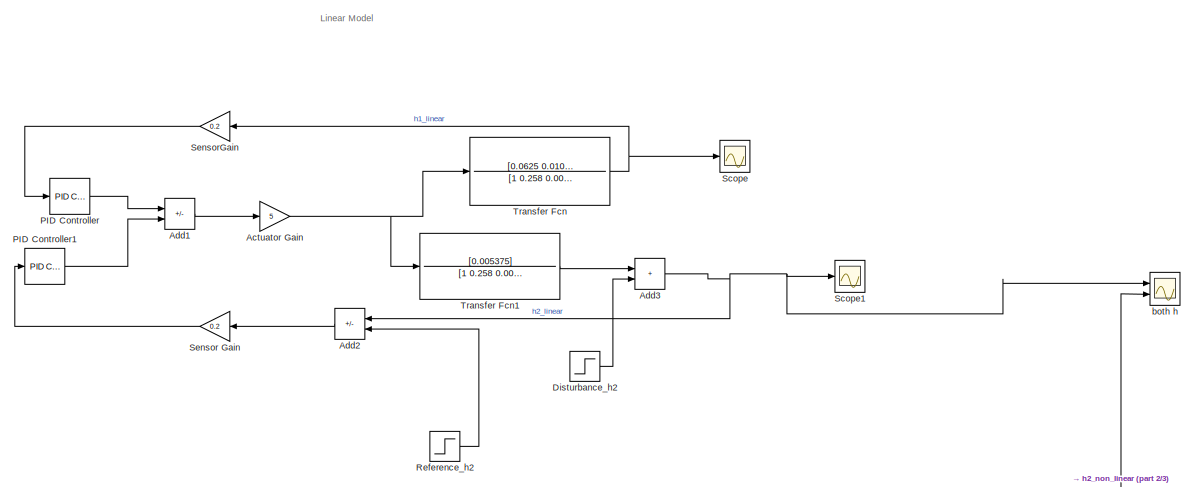
[diagram: root canvas - part 1/3, top left region]
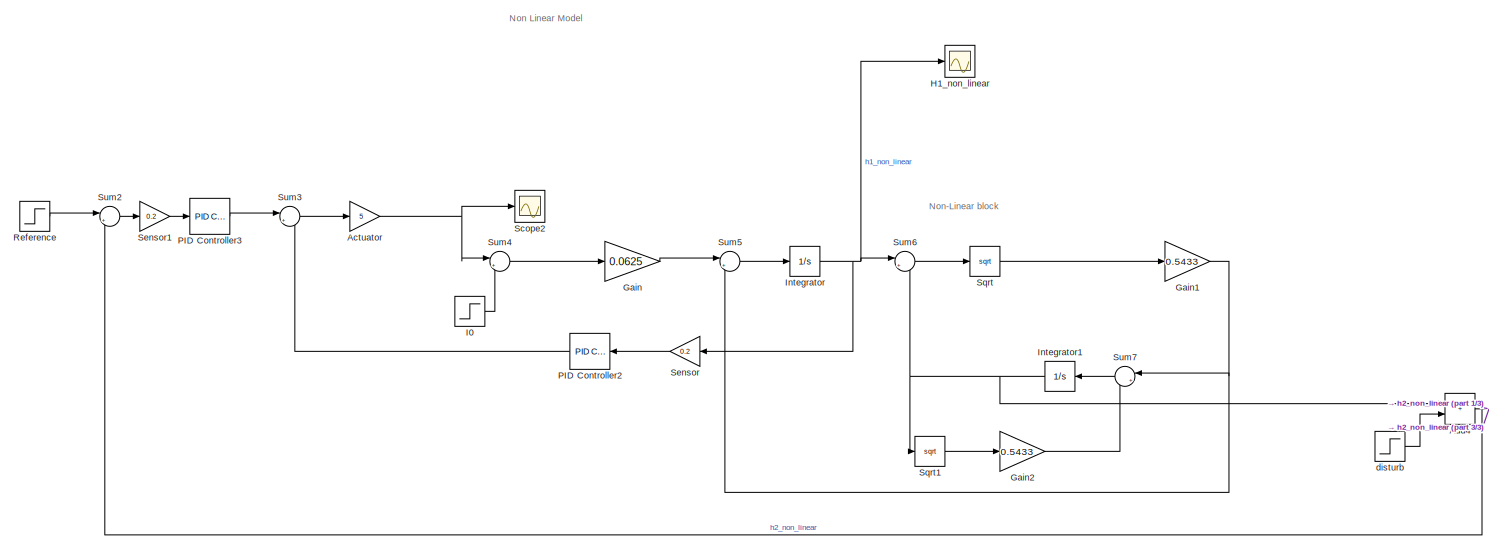
[diagram: root canvas - part 2/3, bottom center region]
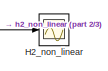
[diagram: root canvas - part 3/3, bottom right region]
MODEL slx_516b2b5dfdda
KIND model
CONFIG AbsTol = auto
CONFIG EnableMultiTasking = off
CONFIG FixedStep = auto
CONFIG MaxStep = auto
CONFIG MinStep = auto
CONFIG RelTol = 1e-3
CONFIG SampleTimeConstraint = Unconstrained
CONFIG SolverName = VariableStepAuto
CONFIG StartTime = 0.0
CONFIG StopTime = 200
BLOCK [Gain] Actuator
  Gain = 5
BLOCK [Gain] Actuator Gain
  Gain = 5
BLOCK [Sum] Add1
  IconShape = rectangular
  Inputs = -+
  Ports = [2, 1]
BLOCK [Sum] Add2
  IconShape = rectangular
  Inputs = -+
  Ports = [2, 1]
BLOCK [Sum] Add3
  IconShape = rectangular
  Ports = [2, 1]
BLOCK [Sum] Add4
  IconShape = rectangular
  Ports = [2, 1]
BLOCK [Step] Disturbance_h2
  SampleTime = 0
  Time = 70
BLOCK [Gain] Gain
  Gain = 0.0625
BLOCK [Gain] Gain1
  Gain = 0.5433
BLOCK [Gain] Gain2
  Gain = 0.5433
BLOCK [Scope] H1_non_linear
  Floating = off
  NumInputPorts = 1
  Ports = [1]
  ScopeSpecificationString = Simulink.scopes.TimeScopeBlockCfg('CurrentConfiguration', extmgr.ConfigurationSet(extmgr.Configuration('Core','General UI',true,'FigureColor',[1 1 1]),extmgr.Configuration('Core','Source UI',true),extmgr.Configuration('Sources','WiredSimulink',true,'DataLoggingVariableName','ScopeData1'),extmgr.Configuration('Visuals','Time Domain',true,'SerializedDisplays',{struct('MinYLimReal','-4.95268','MaxYLi...<+1608ch>
BLOCK [Scope] H2_non_linear
  Floating = off
  NumInputPorts = 1
  Ports = [1]
  ScopeSpecificationString = Simulink.scopes.TimeScopeBlockCfg('CurrentConfiguration', extmgr.ConfigurationSet(extmgr.Configuration('Core','General UI',true,'FigureColor',[1 1 1]),extmgr.Configuration('Core','Source UI',true),extmgr.Configuration('Sources','WiredSimulink',true,'DataLoggingVariableName','ScopeData2'),extmgr.Configuration('Visuals','Time Domain',true,'SerializedDisplays',{struct('MinYLimReal','-1.4727','MaxYLim...<+1602ch>
BLOCK [Step] I0
  After = 27.49
  SampleTime = 0
  Time = 0
BLOCK [Integrator] Integrator
  Ports = [1, 1]
BLOCK [Integrator] Integrator1
  Ports = [1, 1]
BLOCK [Reference] PID Controller  REF=pid_lib/PID Controller
  Ports = [1, 1]
  SourceBlock = pid_lib/PID Controller
  SourceProductBaseCode = SL
  SourceType = PID 1dof
BLOCK [Reference] PID Controller1  REF=pid_lib/PID Controller
  Ports = [1, 1]
  SourceBlock = pid_lib/PID Controller
  SourceProductBaseCode = SL
  SourceType = PID 1dof
BLOCK [Reference] PID Controller2  REF=pid_lib/PID Controller
  Ports = [1, 1]
  SourceBlock = pid_lib/PID Controller
  SourceProductBaseCode = SL
  SourceType = PID 1dof
BLOCK [Reference] PID Controller3  REF=pid_lib/PID Controller
  Ports = [1, 1]
  SourceBlock = pid_lib/PID Controller
  SourceProductBaseCode = SL
  SourceType = PID 1dof
BLOCK [Step] Reference
  After = 10
  SampleTime = 0
  Time = 0
BLOCK [Step] Reference_h2
  After = 10
  SampleTime = 0
  Time = 0
BLOCK [Scope] Scope
  Floating = off
  NumInputPorts = 1
  Ports = [1]
  ScopeSpecificationString = Simulink.scopes.TimeScopeBlockCfg('CurrentConfiguration', extmgr.ConfigurationSet(extmgr.Configuration('Core','General UI',true,'FigureColor',[1 1 1]),extmgr.Configuration('Core','Source UI',true),extmgr.Configuration('Sources','WiredSimulink',true,'DataLoggingVariableName','ScopeData1'),extmgr.Configuration('Visuals','Time Domain',true,'SerializedDisplays',{struct('MinYLimReal','-3.3165','MaxYLim...<+1531ch>
BLOCK [Scope] Scope1
  Floating = off
  NumInputPorts = 1
  Ports = [1]
  ScopeSpecificationString = Simulink.scopes.TimeScopeBlockCfg('CurrentConfiguration', extmgr.ConfigurationSet(extmgr.Configuration('Core','General UI',true,'FigureColor',[1 1 1]),extmgr.Configuration('Core','Source UI',true),extmgr.Configuration('Sources','WiredSimulink',true),extmgr.Configuration('Visuals','Time Domain',true,'SerializedDisplays',{struct('MinYLimReal','-1.37502','MaxYLimReal','12.3752','YLabelReal','','MinYL...<+1530ch>
BLOCK [Scope] Scope2
  Floating = off
  NumInputPorts = 1
  Ports = [1]
  ScopeSpecificationString = Simulink.scopes.TimeScopeBlockCfg('CurrentConfiguration', extmgr.ConfigurationSet(extmgr.Configuration('Core','General UI',true),extmgr.Configuration('Core','Source UI',true),extmgr.Configuration('Sources','WiredSimulink',true,'DataLoggingVariableName','ScopeData3'),extmgr.Configuration('Visuals','Time Domain',true,'SerializedDisplays',{struct('MinYLimReal','-144.33645','MaxYLimReal','696.59294','...<+1381ch>
BLOCK [Gain] Sensor
  Gain = 0.2
BLOCK [Gain] Sensor Gain
  Gain = 0.2
BLOCK [Gain] Sensor1
  Gain = 0.2
BLOCK [Gain] SensorGain
  Gain = 0.2
BLOCK [Sqrt] Sqrt
BLOCK [Sqrt] Sqrt1
BLOCK [Sum] Sum2
  Inputs = |+-
  Ports = [2, 1]
BLOCK [Sum] Sum3
  Inputs = |+-
  Ports = [2, 1]
BLOCK [Sum] Sum4
  Inputs = |++
  Ports = [2, 1]
BLOCK [Sum] Sum5
  Inputs = |+-
  Ports = [2, 1]
BLOCK [Sum] Sum6
  Inputs = |+-
  Ports = [2, 1]
BLOCK [Sum] Sum7
  Inputs = |+-
  Ports = [2, 1]
BLOCK [TransferFcn] Transfer Fcn
  Denominator = [1 0.258 0.0074]
  Numerator = [0.0625 0.0107]
BLOCK [TransferFcn] Transfer Fcn1
  Denominator = [1 0.258 0.0074]
  Numerator = [0.005375]
BLOCK [Scope] both h
  Floating = off
  NumInputPorts = 2
  Ports = [2]
  ScopeSpecificationString = Simulink.scopes.TimeScopeBlockCfg('CurrentConfiguration', extmgr.ConfigurationSet(extmgr.Configuration('Core','General UI',true,'FigureColor',[1 1 1]),extmgr.Configuration('Core','Source UI',true),extmgr.Configuration('Sources','WiredSimulink',true,'DataLoggingVariableName','ScopeData4'),extmgr.Configuration('Visuals','Time Domain',true,'SerializedDisplays',{struct('MinYLimReal','-1.37502','MaxYLi...<+1545ch>
BLOCK [Step] disturb
  SampleTime = 0
  Time = 70
ANNOTATION (root): Linear Model
ANNOTATION (root): Non Linear Model
ANNOTATION (root): Non-Linear block
NET Actuator Gain:1 -> Transfer Fcn1:1, Transfer Fcn:1
NET Actuator:1 -> Scope2:1, Sum4:1
LINE Add1:1 -> Actuator Gain:1
LINE Add2:1 -> Sensor Gain:1
NET Add3:1 -> Add2:1, Scope1:1, both h:1
NET Add4:1 -> H2_non_linear:1, Sum2:2, both h:2
LINE Disturbance_h2:1 -> Add3:2
NET Gain1:1 -> Sum5:2, Sum7:1
LINE Gain2:1 -> Sum7:2
LINE Gain:1 -> Sum5:1
LINE I0:1 -> Sum4:2
NET Integrator1:1 -> Add4:1, Sqrt1:1, Sum6:2
NET Integrator:1 -> H1_non_linear:1, Sensor:1, Sum6:1
LINE PID Controller1:1 -> Add1:2
LINE PID Controller2:1 -> Sum3:2
LINE PID Controller3:1 -> Sum3:1
LINE PID Controller:1 -> Add1:1
LINE Reference:1 -> Sum2:1
LINE Reference_h2:1 -> Add2:2
LINE Sensor Gain:1 -> PID Controller1:1
LINE Sensor1:1 -> PID Controller3:1
LINE Sensor:1 -> PID Controller2:1
LINE SensorGain:1 -> PID Controller:1
LINE Sqrt1:1 -> Gain2:1
LINE Sqrt:1 -> Gain1:1
LINE Sum2:1 -> Sensor1:1
LINE Sum3:1 -> Actuator:1
LINE Sum4:1 -> Gain:1
LINE Sum5:1 -> Integrator:1
LINE Sum6:1 -> Sqrt:1
LINE Sum7:1 -> Integrator1:1
LINE Transfer Fcn1:1 -> Add3:1
NET Transfer Fcn:1 -> Scope:1, SensorGain:1
LINE disturb:1 -> Add4:2
note: NET lines group one-source signal fan-out (src -> all destinations, sorted); 1:1 wires keep LINE
